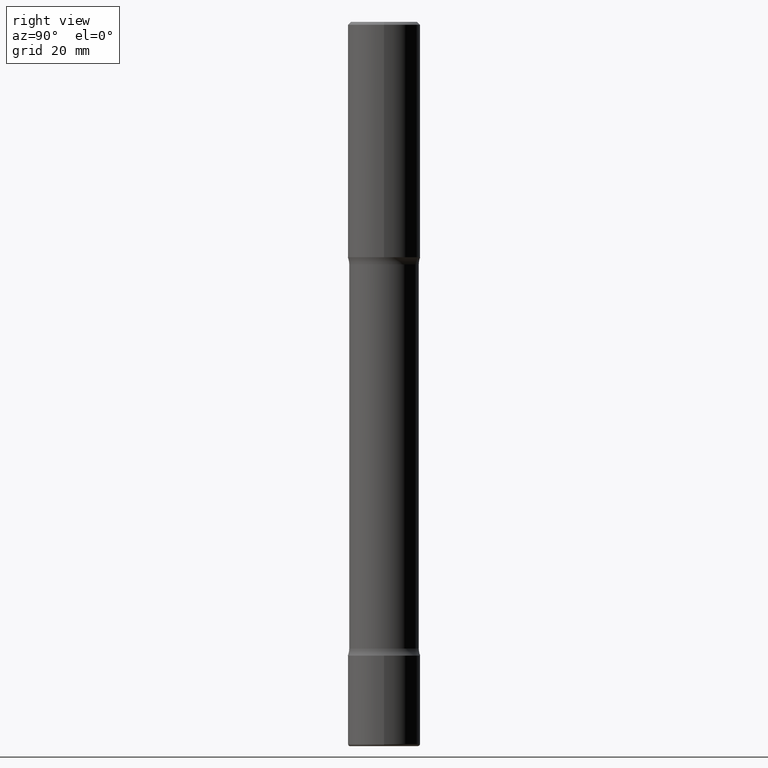
[diagram: clean part render]
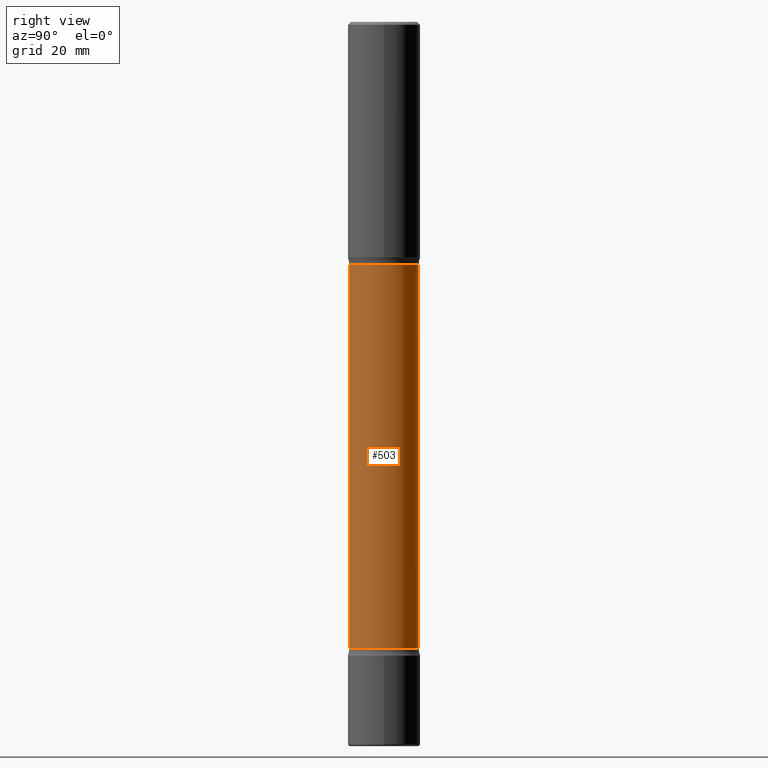
[diagram: same view with one face highlighted and labeled with its STEP entity id]
A machine part, right view. The second image highlights one B-rep face of the part: STEP entity #503.
In plain terms, the highlighted cylindrical surface (edge-blend (fillet) strip) has radius 6.096 mm, axis along (0, -0, -1).
Its self-contained STEP definition (entity closure, byte-faithful):
#12 = CARTESIAN_POINT ( 'NONE',  ( 1.675911042644828414E-15, 0.2399999999999828659, -5.000000000000000888 ) ) ;
#19 = DIRECTION ( 'NONE',  ( 2.598079946832093802E-29, -3.272933499350004525E-15, -1.000000000000000000 ) ) ;
#36 = ORIENTED_EDGE ( 'NONE', *, *, #347, .F. ) ;
#38 = CARTESIAN_POINT ( 'NONE',  ( 1.675911042644809481E-15, 0.2399999999999848366, -4.326010205144337206 ) ) ;
#46 = CARTESIAN_POINT ( 'NONE',  ( -1.680822009453918926E-15, -0.2400000000000150902, -4.326010205144336318 ) ) ;
#49 = DIRECTION ( 'NONE',  ( 2.598079946832093802E-29, -3.272933499350004525E-15, -1.000000000000000000 ) ) ;
#83 = DIRECTION ( 'NONE',  ( 6.982962677686265922E-15, 1.000000000000000000, -2.276539994720219546E-15 ) ) ;
#88 = CARTESIAN_POINT ( 'NONE',  ( 1.057164662344605565E-28, -1.511489051672937447E-14, -4.326010205144336318 ) ) ;
#90 = CIRCLE ( 'NONE', #535, 0.2399999999999999634 ) ;
#115 = AXIS2_PLACEMENT_3D ( 'NONE', #233, #49, #235 ) ;
#139 = VERTEX_POINT ( 'NONE', #456 ) ;
#148 = DIRECTION ( 'NONE',  ( 6.982962677686265922E-15, 1.000000000000000000, -3.414809992080323205E-15 ) ) ;
#158 = CARTESIAN_POINT ( 'NONE',  ( -1.646519519465045286E-15, -0.2400000000000174771, -4.999999999999999112 ) ) ;
#217 = LINE ( 'NONE', #158, #223 ) ;
#223 = VECTOR ( 'NONE', #256, 39.37007874015748143 ) ;
#233 = CARTESIAN_POINT ( 'NONE',  ( 1.232272599383003257E-28, -1.732081429453251623E-14, -5.000000000000000000 ) ) ;
#235 = DIRECTION ( 'NONE',  ( 6.982962677686265922E-15, 1.000000000000000000, -4.553079989440435148E-15 ) ) ;
#237 = CARTESIAN_POINT ( 'NONE',  ( 3.681485576885634284E-29, -6.435004074935638315E-15, -1.673989794855664570 ) ) ;
#256 = DIRECTION ( 'NONE',  ( 2.598079946832093802E-29, -3.272933499350004525E-15, -1.000000000000000000 ) ) ;
#258 = VECTOR ( 'NONE', #362, 39.37007874015748143 ) ;
#265 = CIRCLE ( 'NONE', #285, 0.2400000000000004075 ) ;
#283 = ORIENTED_EDGE ( 'NONE', *, *, #462, .F. ) ;
#285 = AXIS2_PLACEMENT_3D ( 'NONE', #237, #19, #148 ) ;
#311 = ORIENTED_EDGE ( 'NONE', *, *, #549, .T. ) ;
#313 = CARTESIAN_POINT ( 'NONE',  ( 1.675911042644743611E-15, 0.2399999999999939959, -1.673989794855665458 ) ) ;
#317 = EDGE_LOOP ( 'NONE', ( #410, #311, #36, #283 ) ) ;
#319 = VERTEX_POINT ( 'NONE', #38 ) ;
#320 = FACE_OUTER_BOUND ( 'NONE', #317, .T. ) ;
#347 = EDGE_CURVE ( 'NONE', #319, #395, #90, .T. ) ;
#362 = DIRECTION ( 'NONE',  ( 2.598079946832093802E-29, -3.272933499350004525E-15, -1.000000000000000000 ) ) ;
#364 = CYLINDRICAL_SURFACE ( 'NONE', #115, 0.2400000000000001854 ) ;
#395 = VERTEX_POINT ( 'NONE', #46 ) ;
#404 = LINE ( 'NONE', #12, #258 ) ;
#410 = ORIENTED_EDGE ( 'NONE', *, *, #432, .T. ) ;
#424 = DIRECTION ( 'NONE',  ( 2.598079946832093802E-29, -3.272933499350004525E-15, -1.000000000000000000 ) ) ;
#432 = EDGE_CURVE ( 'NONE', #438, #139, #265, .T. ) ;
#438 = VERTEX_POINT ( 'NONE', #313 ) ;
#456 = CARTESIAN_POINT ( 'NONE',  ( -1.680822009453992684E-15, -0.2400000000000068190, -1.673989794855663682 ) ) ;
#462 = EDGE_CURVE ( 'NONE', #438, #319, #404, .T. ) ;
#503 = ADVANCED_FACE ( 'NONE', ( #320 ), #364, .T. ) ;
#535 = AXIS2_PLACEMENT_3D ( 'NONE', #88, #424, #83 ) ;
#549 = EDGE_CURVE ( 'NONE', #139, #395, #217, .T. ) ;